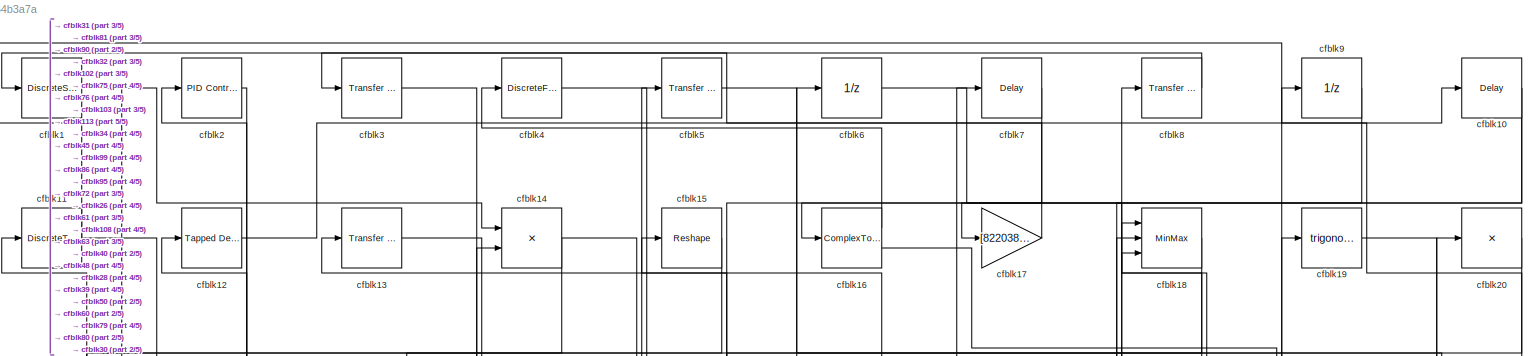
[diagram: root canvas - part 1/5, full width, top band]
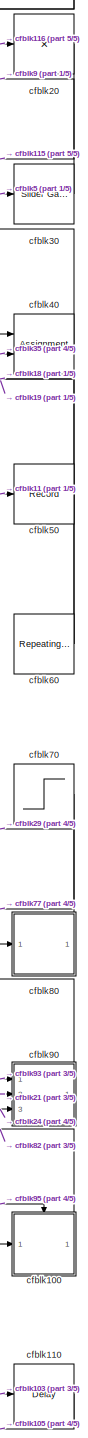
[diagram: root canvas - part 2/5, right side, full height]
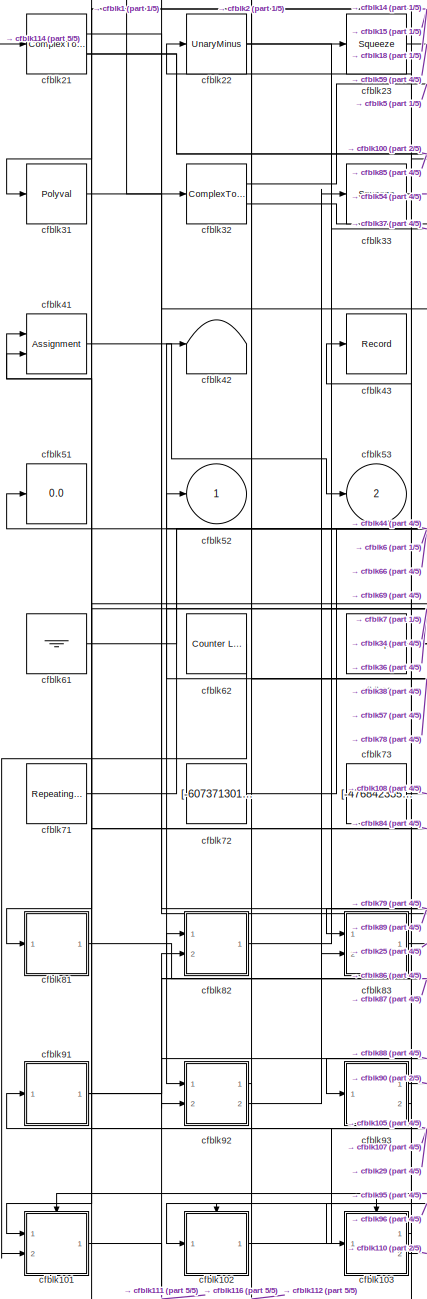
[diagram: root canvas - part 3/5, middle left region]
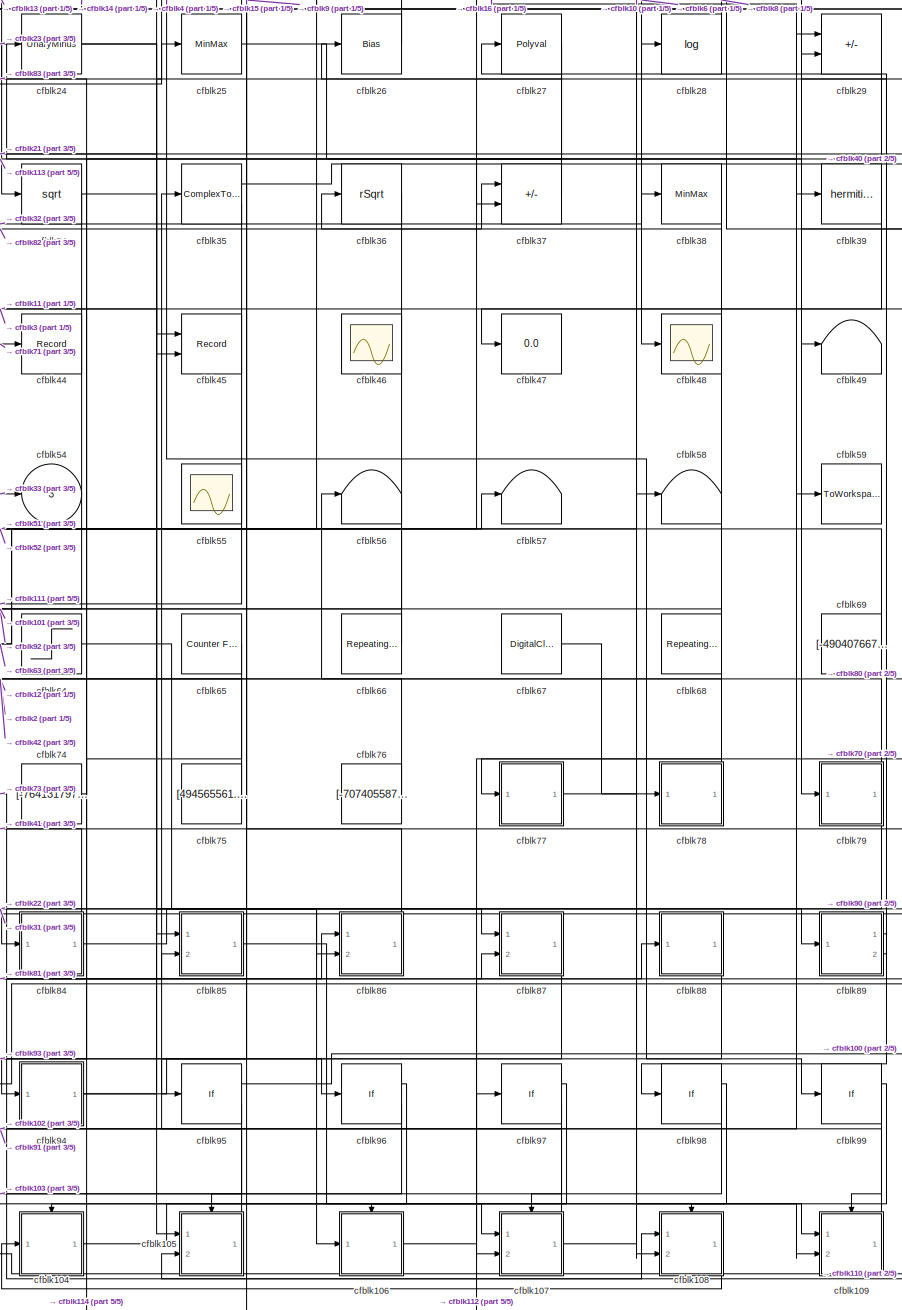
[diagram: root canvas - part 4/5, center side, full height]
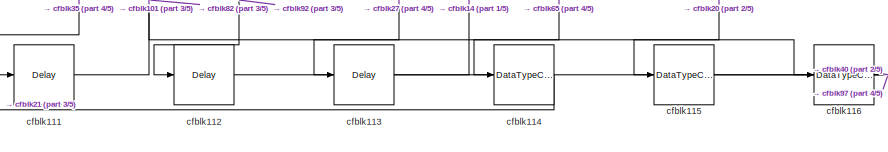
[diagram: root canvas - part 5/5, bottom left region]
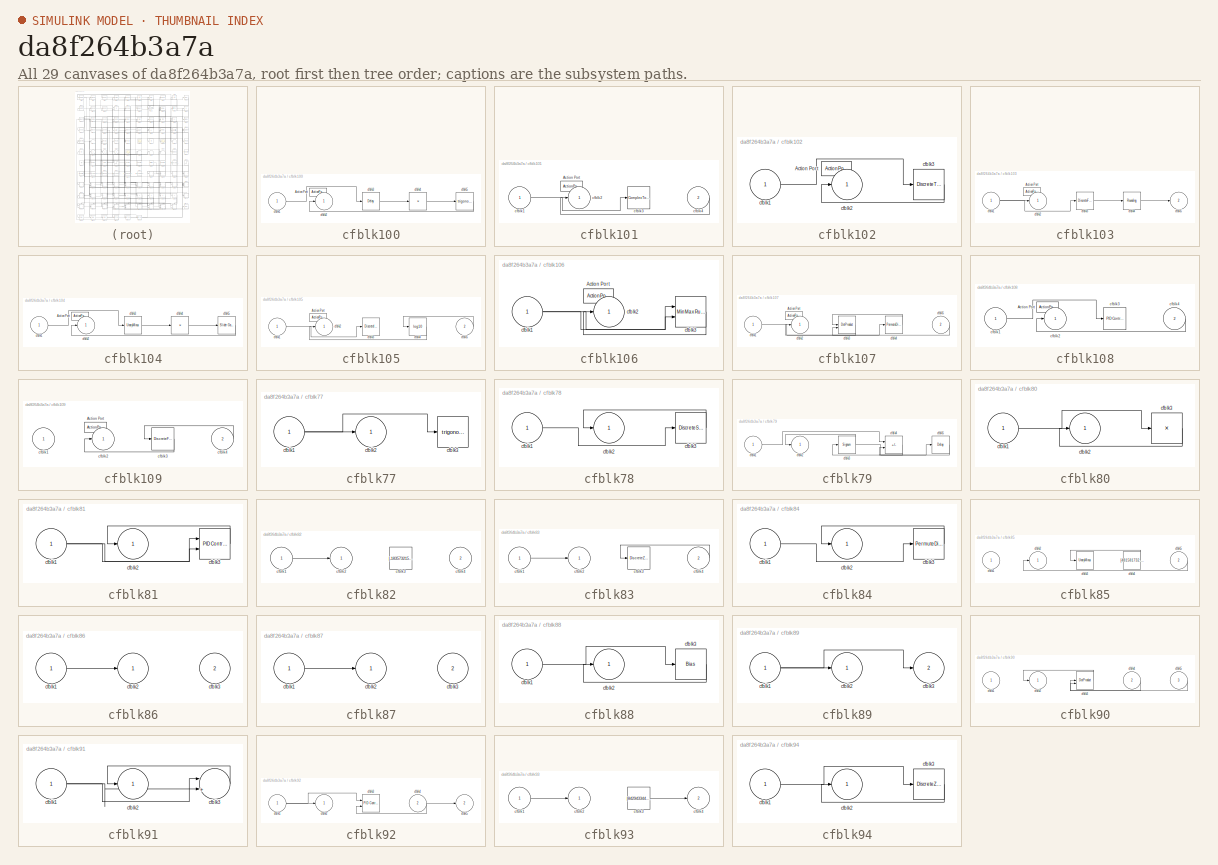
[diagram: thumbnail index - all 29 canvases of the model, root first then tree order]
MODEL slx_da8f264b3a7a
KIND model
CONFIG AbsTol = auto
CONFIG EnableMultiTasking = off
CONFIG FixedStep = auto
CONFIG MaxStep = auto
CONFIG MinStep = auto
CONFIG RelTol = 1e-3
CONFIG SampleTimeConstraint = Unconstrained
CONFIG SolverName = VariableStepAuto
CONFIG StartTime = 0.0
CONFIG StopTime = 10.0
BLOCK [DiscreteStateSpace] cfblk1
BLOCK [Delay] cfblk10
  InputPortMap = u0
  Ports = [1, 1]
  SampleTime = 1
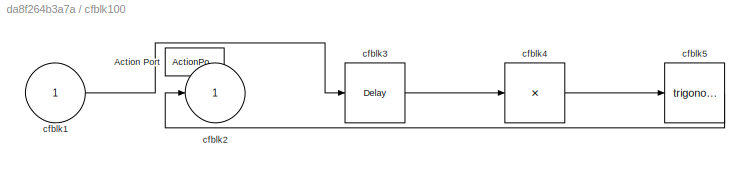
BLOCK [SubSystem] cfblk100
  Ports = [1, 1, 0, 0, 0, 0, 0, 1]
  RequestExecContextInheritance = off
  TreatAsAtomicUnit = on
BLOCK [ActionPort] cfblk100/Action Port
  ActionPortLabel = if(u1 >= 0)
BLOCK [Inport] cfblk100/cfblk1
BLOCK [Outport] cfblk100/cfblk2
BLOCK [Delay] cfblk100/cfblk3
  InputPortMap = u0
  Ports = [1, 1]
BLOCK [Product] cfblk100/cfblk4
  Inputs = *
  Ports = [1, 1]
BLOCK [Trigonometry] cfblk100/cfblk5
  Ports = [1, 1]
BLOCK [SubSystem] cfblk101
  Ports = [2, 1, 0, 0, 0, 0, 0, 1]
  RequestExecContextInheritance = off
  TreatAsAtomicUnit = on
BLOCK [ActionPort] cfblk101/Action Port
  ActionPortLabel = else
BLOCK [Inport] cfblk101/cfblk1
BLOCK [Outport] cfblk101/cfblk2
BLOCK [ComplexToRealImag] cfblk101/cfblk3
  Ports = [1, 2]
BLOCK [Inport] cfblk101/cfblk4
  Port = 2
BLOCK [SubSystem] cfblk102
  Ports = [1, 1, 0, 0, 0, 0, 0, 1]
  RequestExecContextInheritance = off
  TreatAsAtomicUnit = on
BLOCK [ActionPort] cfblk102/Action Port
  ActionPortLabel = if(u1 >= 0)
BLOCK [Inport] cfblk102/cfblk1
BLOCK [Outport] cfblk102/cfblk2
BLOCK [DiscreteTransferFcn] cfblk102/cfblk3
  InputPortMap = u0
  Ports = [1, 1]
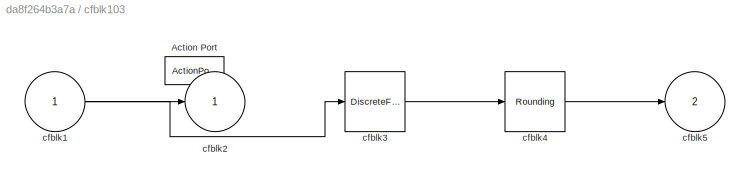
BLOCK [SubSystem] cfblk103
  Ports = [1, 2, 0, 0, 0, 0, 0, 1]
  RequestExecContextInheritance = off
  TreatAsAtomicUnit = on
BLOCK [ActionPort] cfblk103/Action Port
  ActionPortLabel = else
BLOCK [Inport] cfblk103/cfblk1
BLOCK [Outport] cfblk103/cfblk2
BLOCK [DiscreteFilter] cfblk103/cfblk3
  InputPortMap = u0
  Ports = [1, 1]
BLOCK [Rounding] cfblk103/cfblk4
BLOCK [Outport] cfblk103/cfblk5
  Port = 2
BLOCK [SubSystem] cfblk104
  Ports = [1, 1, 0, 0, 0, 0, 0, 1]
  RequestExecContextInheritance = off
  TreatAsAtomicUnit = on
BLOCK [ActionPort] cfblk104/Action Port
  ActionPortLabel = if(u1 >= 0)
BLOCK [Inport] cfblk104/cfblk1
BLOCK [Outport] cfblk104/cfblk2
BLOCK [UnaryMinus] cfblk104/cfblk3
BLOCK [Product] cfblk104/cfblk4
  Inputs = *
  Ports = [1, 1]
BLOCK [Reference] cfblk104/cfblk5  REF=simulink/Math
Operations/Slider
Gain
  Ports = [1, 1]
  SourceBlock = simulink/Math\nOperations/Slider\nGain
  SourceProductBaseCode = SL
  SourceType = Slider Gain
BLOCK [SubSystem] cfblk105
  Ports = [2, 1, 0, 0, 0, 0, 0, 1]
  RequestExecContextInheritance = off
  TreatAsAtomicUnit = on
BLOCK [ActionPort] cfblk105/Action Port
  ActionPortLabel = else
BLOCK [Inport] cfblk105/cfblk1
BLOCK [Outport] cfblk105/cfblk2
BLOCK [DiscreteIntegrator] cfblk105/cfblk3
  ICPrevOutput = DiscIntNeverNeededParam
  ICPrevScaledInput = DiscIntNeverNeededParam
  InitialConditionSetting = Auto
  Ports = [1, 1]
  SampleTime = -1
BLOCK [Math] cfblk105/cfblk4
  Operator = log10
  Ports = [1, 1]
BLOCK [Inport] cfblk105/cfblk5
  Port = 2
BLOCK [SubSystem] cfblk106
  Ports = [1, 1, 0, 0, 0, 0, 0, 1]
  RequestExecContextInheritance = off
  TreatAsAtomicUnit = on
BLOCK [ActionPort] cfblk106/Action Port
  ActionPortLabel = if(u1 >= 0)
BLOCK [Inport] cfblk106/cfblk1
BLOCK [Outport] cfblk106/cfblk2
BLOCK [Reference] cfblk106/cfblk3  REF=simulink/Math
Operations/MinMax
Running
Resettable
  Ports = [2, 1]
  SourceBlock = simulink/Math\nOperations/MinMax\nRunning\nResettable
  SourceProductBaseCode = SL
  SourceType = MinMax Running Resettable
BLOCK [SubSystem] cfblk107
  Ports = [2, 1, 0, 0, 0, 0, 0, 1]
  RequestExecContextInheritance = off
  TreatAsAtomicUnit = on
BLOCK [ActionPort] cfblk107/Action Port
  ActionPortLabel = else
BLOCK [Inport] cfblk107/cfblk1
BLOCK [Outport] cfblk107/cfblk2
BLOCK [DotProduct] cfblk107/cfblk3
  OutDataTypeStr = Inherit: Inherit via internal rule
BLOCK [PermuteDimensions] cfblk107/cfblk4
BLOCK [Inport] cfblk107/cfblk5
  Port = 2
BLOCK [SubSystem] cfblk108
  Ports = [2, 1, 0, 0, 0, 0, 0, 1]
  RequestExecContextInheritance = off
  TreatAsAtomicUnit = on
BLOCK [ActionPort] cfblk108/Action Port
  ActionPortLabel = if(u1 >= 0)
BLOCK [Inport] cfblk108/cfblk1
BLOCK [Outport] cfblk108/cfblk2
BLOCK [Reference] cfblk108/cfblk3  REF=slpidlib/PID Controller
  Ports = [1, 1]
  SourceBlock = slpidlib/PID Controller
  SourceProductBaseCode = SL
  SourceType = PID 1dof
BLOCK [Inport] cfblk108/cfblk4
  Port = 2
BLOCK [SubSystem] cfblk109
  Ports = [2, 1, 0, 0, 0, 0, 0, 1]
  RequestExecContextInheritance = off
  TreatAsAtomicUnit = on
BLOCK [ActionPort] cfblk109/Action Port
  ActionPortLabel = else
BLOCK [Inport] cfblk109/cfblk1
BLOCK [Outport] cfblk109/cfblk2
BLOCK [DiscreteFilter] cfblk109/cfblk3
  InputPortMap = u0
  Ports = [1, 1]
BLOCK [Inport] cfblk109/cfblk4
  Port = 2
BLOCK [DiscreteTransferFcn] cfblk11
  InputPortMap = u0
  Ports = [1, 1]
  SampleTime = 1
BLOCK [Delay] cfblk110
  InputPortMap = u0
  Ports = [1, 1]
  SampleTime = 1
BLOCK [Delay] cfblk111
  InputPortMap = u0
  Ports = [1, 1]
  SampleTime = 1
BLOCK [Delay] cfblk112
  InputPortMap = u0
  Ports = [1, 1]
  SampleTime = 1
BLOCK [Delay] cfblk113
  InputPortMap = u0
  Ports = [1, 1]
  SampleTime = 1
BLOCK [DataTypeConversion] cfblk114
  RndMeth = Floor
  SaturateOnIntegerOverflow = off
BLOCK [DataTypeConversion] cfblk115
  RndMeth = Floor
  SaturateOnIntegerOverflow = off
BLOCK [DataTypeConversion] cfblk116
  RndMeth = Floor
  SaturateOnIntegerOverflow = off
BLOCK [Reference] cfblk12  REF=simulink/Discrete/Tapped Delay
  Ports = [1, 1]
  SourceBlock = simulink/Discrete/Tapped Delay
  SourceProductBaseCode = SL
  SourceType = Tapped Delay Line
BLOCK [Reference] cfblk13  REF=simulink/Discrete/Transfer Fcn
Lead or Lag
  Ports = [1, 1]
  SourceBlock = simulink/Discrete/Transfer Fcn\nLead or Lag
  SourceProductBaseCode = SL
  SourceType = Lead or Lag Compensator
BLOCK [Product] cfblk14
  Ports = [2, 1]
BLOCK [Reshape] cfblk15
  Ports = [1, 1]
BLOCK [ComplexToMagnitudeAngle] cfblk16
  Ports = [1, 2]
BLOCK [Gain] cfblk17
  Gain = [82203851.881258]
BLOCK [MinMax] cfblk18
  Inputs = 3
  Ports = [3, 1]
BLOCK [Trigonometry] cfblk19
  Ports = [1, 1]
BLOCK [Reference] cfblk2  REF=slpidlib/PID Controller
  Ports = [1, 1]
  SourceBlock = slpidlib/PID Controller
  SourceProductBaseCode = SL
  SourceType = PID 1dof
BLOCK [Product] cfblk20
  Inputs = *
  Ports = [1, 1]
BLOCK [ComplexToRealImag] cfblk21
  Ports = [1, 2]
BLOCK [UnaryMinus] cfblk22
BLOCK [Squeeze] cfblk23
BLOCK [UnaryMinus] cfblk24
BLOCK [MinMax] cfblk25
  Function = max
  Ports = [1, 1]
BLOCK [Bias] cfblk26
  Bias = [-425824764.870039]
  SaturateOnIntegerOverflow = off
BLOCK [Polyval] cfblk27
  Coefs = [ +2.081618890e-019, -1.441693666e-014, +4.719686976e-010, -8.536869453e-006, +1.621573104e-001, -8.087801117e+001 ]
BLOCK [Math] cfblk28
  Operator = log
  Ports = [1, 1]
BLOCK [Sum] cfblk29
  IconShape = rectangular
  Inputs = -+
  Ports = [2, 1]
BLOCK [Reference] cfblk3  REF=simulink/Discrete/Transfer Fcn
Lead or Lag
  Ports = [1, 1]
  SourceBlock = simulink/Discrete/Transfer Fcn\nLead or Lag
  SourceProductBaseCode = SL
  SourceType = Lead or Lag Compensator
BLOCK [Reference] cfblk30  REF=simulink/Math
Operations/Slider
Gain
  Ports = [1, 1]
  SourceBlock = simulink/Math\nOperations/Slider\nGain
  SourceProductBaseCode = SL
  SourceType = Slider Gain
BLOCK [Polyval] cfblk31
  Coefs = [ +2.081618890e-019, -1.441693666e-014, +4.719686976e-010, -8.536869453e-006, +1.621573104e-001, -8.087801117e+001 ]
BLOCK [ComplexToRealImag] cfblk32
  Ports = [1, 2]
BLOCK [Squeeze] cfblk33
BLOCK [Sqrt] cfblk34
BLOCK [ComplexToRealImag] cfblk35
  Ports = [1, 2]
BLOCK [Sqrt] cfblk36
  AlgorithmType = Newton-Raphson
  Operator = rSqrt
BLOCK [Sum] cfblk37
  IconShape = rectangular
  Inputs = -+
  Ports = [2, 1]
BLOCK [MinMax] cfblk38
  Function = max
  Ports = [1, 1]
BLOCK [Math] cfblk39
  Operator = hermitian
  Ports = [1, 1]
BLOCK [DiscreteFilter] cfblk4
  InputPortMap = u0
  Ports = [1, 1]
  SampleTime = 1
BLOCK [Assignment] cfblk40
  DiagnosticForDimensions = Warning
  IndexOptions = Index vector (dialog)
  Indices = 1
  OutputSizes = 1
  Ports = [2, 1]
BLOCK [Assignment] cfblk41
  DiagnosticForDimensions = Warning
  IndexOptions = Index vector (dialog)
  Indices = 1
  OutputSizes = 1
  Ports = [2, 1]
BLOCK [Terminator] cfblk42
BLOCK [Record] cfblk43
  FileSettingsInternal = {"entries":[{"content":{"excelSettings":{"content":{},"type":"Streamout.ExcelSettings"}},"type":"Streamout.FileSettingStorage","uuid":"5c4a37b6-0359-467e-84e6-9317a0811d0a"}],"packageUris":["http://schema.mathworks.com/mf0/streamout_blocks/R2020a"],"version":"1.0"}
  Ports = [1]
  SignalsInternal = {"entries":[{"content":{"signals":[{"content":{"blockPath":["sampleModel144/cfblk43"],"channel":[],"dimensions":[1],"domain":"sampleModel144/cfblk43","lineColor":"#d95319","plots":[1],"port":1,"sid":[""],"signalID":5204,"signalName":"cfblk103:1"},"type":"RecordBlkView.Signal","uuid":"9621bb84-a48d-416a-9409-d8cbd1ebf58d"}]},"type":"RecordBlkView.InputSignals","uuid":"23b9c5c9-19cf-4bac-a036-d5d4f1...<+100ch>
  VisualizationBindings = {"sparklinesplugin":{"info":[{"bindingParametersList":[],"subplotID":1}]}}
BLOCK [Record] cfblk44
  FileSettingsInternal = {"entries":[{"content":{"excelSettings":{"content":{},"type":"Streamout.ExcelSettings"}},"type":"Streamout.FileSettingStorage","uuid":"03f92004-a9d3-4a0e-b80c-98bf6b8b5017"}],"packageUris":["http://schema.mathworks.com/mf0/streamout_blocks/R2020a"],"version":"1.0"}
  Ports = [1]
  SignalsInternal = {"entries":[{"content":{"signals":[{"content":{"blockPath":["sampleModel144/cfblk44"],"channel":[],"dimensions":[1],"domain":"sampleModel144/cfblk44","lineColor":"#4dbeee","plots":[1],"port":1,"sid":[""],"signalID":5220,"signalName":"cfblk71"},"type":"RecordBlkView.Signal","uuid":"c2fc6b42-ec73-41e0-9d10-4ee77b5be672"}]},"type":"RecordBlkView.InputSignals","uuid":"632f383e-e8e8-4e3e-9502-4cccf17ac...<+97ch>
  VisualizationBindings = {"sparklinesplugin":{"info":[{"bindingParametersList":[],"subplotID":1}]}}
BLOCK [Record] cfblk45
  CompatibilityTag = XY
  FileSettingsInternal = {"entries":[{"content":{"excelSettings":{"content":{},"type":"Streamout.ExcelSettings"}},"type":"Streamout.FileSettingStorage","uuid":"04b73ee6-1f3f-4c79-aaae-0e4c130555b6"}],"packageUris":["http://schema.mathworks.com/mf0/streamout_blocks/R2020a"],"version":"1.0"}
  Layout = [1 1]
  Ports = [2]
  SignalsInternal = {"entries":[{"content":{"signals":[{"content":{"blockPath":["sampleModel144/cfblk45"],"channel":[],"dimensions":[1],"domain":"sampleModel144/cfblk45","lineColor":"#a2142f","plots":[1],"port":1,"sid":[""],"signalID":5208,"signalName":"cfblk14"},"type":"RecordBlkView.Signal","uuid":"97cb9547-06cd-434e-bd16-bfd4ee99d097"},{"content":{"blockPath":["sampleModel144/cfblk45"],"channel":[],"dimensions":[1...<+382ch>
  VisualizationBindings = {"xyplotplugin":{"info":[{"series":[{"bindingParametersList":[{"parameter":"X-Axis","signalID":5208,"signalName":"cfblk14"},{"parameter":"Y-Axis","signalID":5212,"signalName":"cfblk3"}],"seriesID":37859}],"subplotID":1}]}}
BLOCK [Scope] cfblk46
  Floating = on
  NumInputPorts = 1
  Ports = []
BLOCK [Display] cfblk47
  Decimation = 1
  Ports = [1]
BLOCK [Scope] cfblk48
  Floating = off
  NumInputPorts = 1
  Ports = [1]
BLOCK [Terminator] cfblk49
BLOCK [Reference] cfblk5  REF=simulink/Discrete/Transfer Fcn
Lead or Lag
  Ports = [1, 1]
  SourceBlock = simulink/Discrete/Transfer Fcn\nLead or Lag
  SourceProductBaseCode = SL
  SourceType = Lead or Lag Compensator
BLOCK [Record] cfblk50
  FileSettingsInternal = {"entries":[{"content":{"excelSettings":{"content":{},"type":"Streamout.ExcelSettings"}},"type":"Streamout.FileSettingStorage","uuid":"9c2b4a6c-49af-440e-8358-9805173d7e4c"}],"packageUris":["http://schema.mathworks.com/mf0/streamout_blocks/R2020a"],"version":"1.0"}
  Ports = [1]
  SignalsInternal = {"entries":[{"content":{"signals":[{"content":{"blockPath":["sampleModel144/cfblk50"],"channel":[],"dimensions":[1],"domain":"sampleModel144/cfblk50","lineColor":"#77ac30","plots":[1],"port":1,"sid":[""],"signalID":5216,"signalName":"cfblk11"},"type":"RecordBlkView.Signal","uuid":"50ec43a9-0023-4b49-9f3d-5174647fc26d"}]},"type":"RecordBlkView.InputSignals","uuid":"1b3cebce-2def-4e8e-90ba-a55665d60...<+97ch>
  VisualizationBindings = {"sparklinesplugin":{"info":[{"bindingParametersList":[],"subplotID":1}]}}
BLOCK [Display] cfblk51
  Decimation = 1
  Ports = [1]
BLOCK [Outport] cfblk52
BLOCK [Outport] cfblk53
  Port = 2
BLOCK [Outport] cfblk54
  Port = 3
BLOCK [Scope] cfblk55
  Floating = on
  NumInputPorts = 1
  Ports = []
BLOCK [Terminator] cfblk56
BLOCK [Terminator] cfblk57
BLOCK [Terminator] cfblk58
BLOCK [ToWorkspace] cfblk59
  FixptAsFi = on
  MaxDataPoints = inf
  Ports = [1]
  SampleTime = -1
  SaveFormat = Timeseries
  VariableName = dmtygra
BLOCK [UnitDelay] cfblk6
  HasFrameUpgradeWarning = on
BLOCK [Reference] cfblk60  REF=simulink/Sources/Repeating
Sequence
Stair
  Ports = [0, 1]
  SourceBlock = simulink/Sources/Repeating\nSequence\nStair
  SourceProductBaseCode = SL
  SourceType = Repeating Sequence Stair
BLOCK [Ground] cfblk61
BLOCK [Reference] cfblk62  REF=simulink/Sources/Counter
Limited
  Ports = [0, 1]
  SourceBlock = simulink/Sources/Counter\nLimited
  SourceProductBaseCode = SL
  SourceType = Counter Limited
BLOCK [Reference] cfblk63  REF=simulink/Sources/Ramp
  Ports = [0, 1]
  SourceBlock = simulink/Sources/Ramp
  SourceProductBaseCode = SL
  SourceType = Ramp
BLOCK [Step] cfblk64
  After = [-26613857.033650]
  Before = [375351102.117326]
  SampleTime = 0
  Time = [34.000000]
BLOCK [Reference] cfblk65  REF=simulink/Sources/Counter
Free-Running
  Ports = [0, 1]
  SourceBlock = simulink/Sources/Counter\nFree-Running
  SourceProductBaseCode = SL
  SourceType = Counter Free-Running
BLOCK [Reference] cfblk66  REF=simulink/Sources/Repeating
Sequence
Interpolated
  Ports = [0, 1]
  SourceBlock = simulink/Sources/Repeating\nSequence\nInterpolated
  SourceProductBaseCode = SL
  SourceType = Repeating Sequence Interpolated
BLOCK [DigitalClock] cfblk67
BLOCK [Reference] cfblk68  REF=simulink/Sources/Repeating
Sequence
Interpolated
  Ports = [0, 1]
  SourceBlock = simulink/Sources/Repeating\nSequence\nInterpolated
  SourceProductBaseCode = SL
  SourceType = Repeating Sequence Interpolated
BLOCK [Constant] cfblk69
  SampleTime = 1
  Value = [-490407667.791831]
BLOCK [Delay] cfblk7
  InputPortMap = u0
  Ports = [1, 1]
  SampleTime = 1
BLOCK [Step] cfblk70
  After = [-181712344.934336]
  Before = [-461429568.151026]
  SampleTime = 0
  Time = [49.000000]
BLOCK [Reference] cfblk71  REF=simulink/Sources/Repeating
Sequence
Interpolated
  Ports = [0, 1]
  SourceBlock = simulink/Sources/Repeating\nSequence\nInterpolated
  SourceProductBaseCode = SL
  SourceType = Repeating Sequence Interpolated
BLOCK [Constant] cfblk72
  SampleTime = 1
  Value = [-607371301.260492]
BLOCK [Constant] cfblk73
  SampleTime = 1
  Value = [-476842335.717172]
BLOCK [Constant] cfblk74
  SampleTime = 1
  Value = [-764131797.286092]
BLOCK [Constant] cfblk75
  SampleTime = 1
  Value = [494565561.196399]
BLOCK [Constant] cfblk76
  SampleTime = 1
  Value = [-707405587.799836]
BLOCK [SubSystem] cfblk77
  Ports = [1, 1]
  RequestExecContextInheritance = off
BLOCK [Inport] cfblk77/cfblk1
BLOCK [Outport] cfblk77/cfblk2
BLOCK [Trigonometry] cfblk77/cfblk3
  Ports = [1, 1]
BLOCK [SubSystem] cfblk78
  Ports = [1, 1]
  RequestExecContextInheritance = off
BLOCK [Inport] cfblk78/cfblk1
BLOCK [Outport] cfblk78/cfblk2
BLOCK [DiscreteStateSpace] cfblk78/cfblk3
BLOCK [SubSystem] cfblk79
  Ports = [1, 1]
  RequestExecContextInheritance = off
BLOCK [Inport] cfblk79/cfblk1
BLOCK [Outport] cfblk79/cfblk2
BLOCK [Signum] cfblk79/cfblk3
BLOCK [Sum] cfblk79/cfblk4
  IconShape = rectangular
  Inputs = --
  Ports = [2, 1]
BLOCK [Delay] cfblk79/cfblk5
  InputPortMap = u0
  Ports = [1, 1]
  SampleTime = 1
BLOCK [Reference] cfblk8  REF=simulink/Discrete/Transfer Fcn
Lead or Lag
  Ports = [1, 1]
  SourceBlock = simulink/Discrete/Transfer Fcn\nLead or Lag
  SourceProductBaseCode = SL
  SourceType = Lead or Lag Compensator
BLOCK [SubSystem] cfblk80
  Ports = [1, 1]
  RequestExecContextInheritance = off
BLOCK [Inport] cfblk80/cfblk1
BLOCK [Outport] cfblk80/cfblk2
BLOCK [Product] cfblk80/cfblk3
  Inputs = *
  Ports = [1, 1]
BLOCK [SubSystem] cfblk81
  Ports = [1, 1]
  RequestExecContextInheritance = off
BLOCK [Inport] cfblk81/cfblk1
BLOCK [Outport] cfblk81/cfblk2
BLOCK [Reference] cfblk81/cfblk3  REF=slpidlib/PID Controller (2DOF)
  Ports = [2, 1]
  SourceBlock = slpidlib/PID Controller (2DOF)
  SourceProductBaseCode = SL
  SourceType = PID 2dof
BLOCK [SubSystem] cfblk82
  Ports = [2, 1]
  RequestExecContextInheritance = off
BLOCK [Inport] cfblk82/cfblk1
BLOCK [Outport] cfblk82/cfblk2
BLOCK [Constant] cfblk82/cfblk3
  SampleTime = 1
  Value = [-183573215.800943]
BLOCK [Inport] cfblk82/cfblk4
  Port = 2
BLOCK [SubSystem] cfblk83
  Ports = [2, 1]
  RequestExecContextInheritance = off
BLOCK [Inport] cfblk83/cfblk1
BLOCK [Outport] cfblk83/cfblk2
BLOCK [DiscreteZeroPole] cfblk83/cfblk3
  Gain = 1
  Poles = [0 0.5]
BLOCK [Inport] cfblk83/cfblk4
  Port = 2
BLOCK [SubSystem] cfblk84
  Ports = [1, 1]
  RequestExecContextInheritance = off
BLOCK [Inport] cfblk84/cfblk1
BLOCK [Outport] cfblk84/cfblk2
BLOCK [PermuteDimensions] cfblk84/cfblk3
BLOCK [SubSystem] cfblk85
  Ports = [2, 1]
  RequestExecContextInheritance = off
BLOCK [Inport] cfblk85/cfblk1
BLOCK [Outport] cfblk85/cfblk2
BLOCK [UnaryMinus] cfblk85/cfblk3
BLOCK [Constant] cfblk85/cfblk4
  SampleTime = 1
  Value = [481581732.776417]
BLOCK [Inport] cfblk85/cfblk5
  Port = 2
BLOCK [SubSystem] cfblk86
  Ports = [2, 1]
  RequestExecContextInheritance = off
BLOCK [Inport] cfblk86/cfblk1
BLOCK [Outport] cfblk86/cfblk2
BLOCK [Inport] cfblk86/cfblk3
  Port = 2
BLOCK [SubSystem] cfblk87
  Ports = [2, 1]
  RequestExecContextInheritance = off
BLOCK [Inport] cfblk87/cfblk1
BLOCK [Outport] cfblk87/cfblk2
BLOCK [Inport] cfblk87/cfblk3
  Port = 2
BLOCK [SubSystem] cfblk88
  Ports = [1, 1]
  RequestExecContextInheritance = off
BLOCK [Inport] cfblk88/cfblk1
BLOCK [Outport] cfblk88/cfblk2
BLOCK [Bias] cfblk88/cfblk3
  Bias = [-916073872.083986]
  SaturateOnIntegerOverflow = off
BLOCK [SubSystem] cfblk89
  Ports = [1, 2]
  RequestExecContextInheritance = off
BLOCK [Inport] cfblk89/cfblk1
BLOCK [Outport] cfblk89/cfblk2
BLOCK [Outport] cfblk89/cfblk3
  Port = 2
BLOCK [UnitDelay] cfblk9
  HasFrameUpgradeWarning = on
BLOCK [SubSystem] cfblk90
  Ports = [3, 1]
  RequestExecContextInheritance = off
BLOCK [Inport] cfblk90/cfblk1
BLOCK [Outport] cfblk90/cfblk2
BLOCK [DotProduct] cfblk90/cfblk3
  OutDataTypeStr = Inherit: Inherit via internal rule
BLOCK [Inport] cfblk90/cfblk4
  Port = 2
BLOCK [Inport] cfblk90/cfblk5
  Port = 3
BLOCK [SubSystem] cfblk91
  Ports = [1, 1]
  RequestExecContextInheritance = off
BLOCK [Inport] cfblk91/cfblk1
BLOCK [Outport] cfblk91/cfblk2
BLOCK [Sum] cfblk91/cfblk3
  Inputs = |++
  Ports = [2, 1]
BLOCK [SubSystem] cfblk92
  Ports = [2, 2]
  RequestExecContextInheritance = off
BLOCK [Inport] cfblk92/cfblk1
BLOCK [Outport] cfblk92/cfblk2
BLOCK [Reference] cfblk92/cfblk3  REF=slpidlib/PID Controller (2DOF)
  Ports = [2, 1]
  SourceBlock = slpidlib/PID Controller (2DOF)
  SourceProductBaseCode = SL
  SourceType = PID 2dof
BLOCK [Inport] cfblk92/cfblk4
  Port = 2
BLOCK [Outport] cfblk92/cfblk5
  Port = 2
BLOCK [SubSystem] cfblk93
  Ports = [1, 2]
  RequestExecContextInheritance = off
BLOCK [Inport] cfblk93/cfblk1
BLOCK [Outport] cfblk93/cfblk2
BLOCK [Constant] cfblk93/cfblk3
  SampleTime = 1
  Value = [842943344.214737]
BLOCK [Outport] cfblk93/cfblk4
  Port = 2
BLOCK [SubSystem] cfblk94
  Ports = [1, 1]
  RequestExecContextInheritance = off
BLOCK [Inport] cfblk94/cfblk1
BLOCK [Outport] cfblk94/cfblk2
BLOCK [DiscreteZeroPole] cfblk94/cfblk3
  Gain = 1
  Poles = [0 0.5]
BLOCK [If] cfblk95
  IfExpression = u1 >= 0
  Ports = [1, 2]
  SampleTime = 1
BLOCK [If] cfblk96
  IfExpression = u1 >= 0
  Ports = [1, 2]
  SampleTime = 1
BLOCK [If] cfblk97
  IfExpression = u1 >= 0
  Ports = [1, 2]
  SampleTime = 1
BLOCK [If] cfblk98
  IfExpression = u1 >= 0
  Ports = [1, 2]
  SampleTime = 1
BLOCK [If] cfblk99
  IfExpression = u1 >= 0
  Ports = [1, 2]
  SampleTime = 1
LINE cfblk100/cfblk1:1 -> cfblk100/cfblk3:1
LINE cfblk100/cfblk3:1 -> cfblk100/cfblk4:1
LINE cfblk100/cfblk4:1 -> cfblk100/cfblk5:1
LINE cfblk100/cfblk5:1 -> cfblk100/cfblk2:1
LINE cfblk100:1 -> cfblk82:1
LINE cfblk101/cfblk1:1 -> cfblk101/cfblk3:1
LINE cfblk101/cfblk4:1 -> cfblk101/cfblk2:1
LINE cfblk101:1 -> cfblk116:1
LINE cfblk102/cfblk1:1 -> cfblk102/cfblk3:1
LINE cfblk102/cfblk3:1 -> cfblk102/cfblk2:1
LINE cfblk102:1 -> cfblk29:1
NET cfblk103/cfblk1:1 -> cfblk103/cfblk2:1, cfblk103/cfblk3:1
LINE cfblk103/cfblk3:1 -> cfblk103/cfblk4:1
LINE cfblk103/cfblk4:1 -> cfblk103/cfblk5:1
LINE cfblk103:1 -> cfblk43:1
LINE cfblk103:2 -> cfblk110:1
LINE cfblk104/cfblk1:1 -> cfblk104/cfblk3:1
LINE cfblk104/cfblk3:1 -> cfblk104/cfblk4:1
LINE cfblk104/cfblk4:1 -> cfblk104/cfblk5:1
LINE cfblk104/cfblk5:1 -> cfblk104/cfblk2:1
LINE cfblk104:1 -> cfblk109:1
LINE cfblk105/cfblk1:1 -> cfblk105/cfblk3:1
LINE cfblk105/cfblk4:1 -> cfblk105/cfblk2:1
LINE cfblk105/cfblk5:1 -> cfblk105/cfblk4:1
LINE cfblk105:1 -> cfblk91:1
NET cfblk106/cfblk1:1 -> cfblk106/cfblk3:1, cfblk106/cfblk3:2
LINE cfblk106/cfblk3:1 -> cfblk106/cfblk2:1
LINE cfblk106:1 -> cfblk88:1
LINE cfblk107/cfblk1:1 -> cfblk107/cfblk4:1
LINE cfblk107/cfblk3:1 -> cfblk107/cfblk2:1
LINE cfblk107/cfblk4:1 -> cfblk107/cfblk3:1
LINE cfblk107/cfblk5:1 -> cfblk107/cfblk3:2
NET cfblk107:1 -> cfblk41:2, cfblk58:1
LINE cfblk108/cfblk1:1 -> cfblk108/cfblk3:1
LINE cfblk108/cfblk4:1 -> cfblk108/cfblk2:1
LINE cfblk108:1 -> cfblk104:1
LINE cfblk109/cfblk3:1 -> cfblk109/cfblk2:1
LINE cfblk109/cfblk4:1 -> cfblk109/cfblk3:1
LINE cfblk109:1 -> cfblk35:1
NET cfblk10:1 -> cfblk108:2, cfblk16:1
LINE cfblk110:1 -> cfblk105:2
LINE cfblk111:1 -> cfblk82:2
LINE cfblk112:1 -> cfblk97:1
LINE cfblk113:1 -> cfblk14:2
LINE cfblk114:1 -> cfblk21:1
LINE cfblk115:1 -> cfblk40:1
LINE cfblk116:1 -> cfblk20:1
NET cfblk11:1 -> cfblk50:1, cfblk79:1
LINE cfblk12:1 -> cfblk10:1
LINE cfblk13:1 -> cfblk34:1
NET cfblk14:1 -> cfblk31:1, cfblk45:1
LINE cfblk15:1 -> cfblk81:1
LINE cfblk16:1 -> cfblk4:1
LINE cfblk16:2 -> cfblk39:1
LINE cfblk17:1 -> cfblk1:1
LINE cfblk18:1 -> cfblk103:1
LINE cfblk19:1 -> cfblk80:1
NET cfblk1:1 -> cfblk14:1, cfblk32:1
LINE cfblk20:1 -> cfblk115:1
LINE cfblk21:1 -> cfblk90:2
NET cfblk21:2 -> cfblk100:1, cfblk85:1
NET cfblk22:1 -> cfblk23:1, cfblk84:1
LINE cfblk23:1 -> cfblk59:1
NET cfblk24:1 -> cfblk86:2, cfblk90:3
LINE cfblk25:1 -> cfblk49:1
LINE cfblk26:1 -> cfblk13:1
NET cfblk27:1 -> cfblk113:1, cfblk94:1
LINE cfblk28:1 -> cfblk8:1
LINE cfblk29:1 -> cfblk37:2
LINE cfblk2:1 -> cfblk102:1
LINE cfblk30:1 -> cfblk9:1
LINE cfblk31:1 -> cfblk89:1
LINE cfblk32:1 -> cfblk5:1
LINE cfblk32:2 -> cfblk38:1
LINE cfblk33:1 -> cfblk54:1
NET cfblk34:1 -> cfblk105:1, cfblk83:2
LINE cfblk35:1 -> cfblk40:2
LINE cfblk35:2 -> cfblk111:1
LINE cfblk36:1 -> cfblk92:1
LINE cfblk37:1 -> cfblk26:1
LINE cfblk38:1 -> cfblk101:1
LINE cfblk39:1 -> cfblk47:1
LINE cfblk3:1 -> cfblk45:2
LINE cfblk40:1 -> cfblk18:1
LINE cfblk41:1 -> cfblk53:1
LINE cfblk4:1 -> cfblk99:1
LINE cfblk5:1 -> cfblk30:1
NET cfblk60:1 -> cfblk18:3, cfblk19:1
LINE cfblk61:1 -> cfblk7:1
LINE cfblk62:1 -> cfblk101:2
NET cfblk63:1 -> cfblk18:2, cfblk57:1
LINE cfblk64:1 -> cfblk106:1
LINE cfblk65:1 -> cfblk114:1
LINE cfblk66:1 -> cfblk51:1
LINE cfblk67:1 -> cfblk78:1
NET cfblk68:1 -> cfblk107:2, cfblk36:1
LINE cfblk69:1 -> cfblk52:1
LINE cfblk6:1 -> cfblk48:1
LINE cfblk70:1 -> cfblk77:1
LINE cfblk71:1 -> cfblk44:1
LINE cfblk72:1 -> cfblk6:1
LINE cfblk73:1 -> cfblk108:1
LINE cfblk74:1 -> cfblk24:1
LINE cfblk75:1 -> cfblk12:1
LINE cfblk76:1 -> cfblk2:1
NET cfblk77/cfblk1:1 -> cfblk77/cfblk2:1, cfblk77/cfblk3:1
LINE cfblk77:1 -> cfblk109:2
LINE cfblk78/cfblk1:1 -> cfblk78/cfblk3:1
LINE cfblk78/cfblk3:1 -> cfblk78/cfblk2:1
LINE cfblk78:1 -> cfblk42:1
LINE cfblk79/cfblk1:1 -> cfblk79/cfblk4:1
NET cfblk79/cfblk3:1 -> cfblk79/cfblk2:1, cfblk79/cfblk5:1
LINE cfblk79/cfblk4:1 -> cfblk79/cfblk3:1
LINE cfblk79/cfblk5:1 -> cfblk79/cfblk4:2
NET cfblk79:1 -> cfblk56:1, cfblk83:1
LINE cfblk7:1 -> cfblk17:1
LINE cfblk80/cfblk1:1 -> cfblk80/cfblk3:1
LINE cfblk80/cfblk3:1 -> cfblk80/cfblk2:1
LINE cfblk80:1 -> cfblk29:2
NET cfblk81/cfblk1:1 -> cfblk81/cfblk3:1, cfblk81/cfblk3:2
LINE cfblk81/cfblk3:1 -> cfblk81/cfblk2:1
LINE cfblk81:1 -> cfblk87:2
LINE cfblk82/cfblk1:1 -> cfblk82/cfblk2:1
LINE cfblk82:1 -> cfblk37:1
LINE cfblk83/cfblk1:1 -> cfblk83/cfblk2:1
LINE cfblk83/cfblk4:1 -> cfblk83/cfblk3:1
LINE cfblk83:1 -> cfblk25:1
LINE cfblk84/cfblk1:1 -> cfblk84/cfblk3:1
LINE cfblk84/cfblk3:1 -> cfblk84/cfblk2:1
NET cfblk84:1 -> cfblk41:1, cfblk87:1
LINE cfblk85/cfblk4:1 -> cfblk85/cfblk3:1
LINE cfblk85/cfblk5:1 -> cfblk85/cfblk2:1
LINE cfblk85:1 -> cfblk107:1
LINE cfblk86/cfblk1:1 -> cfblk86/cfblk2:1
LINE cfblk86:1 -> cfblk15:1
LINE cfblk87/cfblk1:1 -> cfblk87/cfblk2:1
LINE cfblk87:1 -> cfblk92:2
LINE cfblk88/cfblk1:1 -> cfblk88/cfblk3:1
LINE cfblk88/cfblk3:1 -> cfblk88/cfblk2:1
LINE cfblk88:1 -> cfblk93:1
NET cfblk89/cfblk1:1 -> cfblk89/cfblk2:1, cfblk89/cfblk3:1
LINE cfblk89:1 -> cfblk98:1
LINE cfblk89:2 -> cfblk27:1
LINE cfblk8:1 -> cfblk3:1
LINE cfblk90/cfblk3:1 -> cfblk90/cfblk2:1
LINE cfblk90/cfblk4:1 -> cfblk90/cfblk3:1
LINE cfblk90/cfblk5:1 -> cfblk90/cfblk3:2
LINE cfblk90:1 -> cfblk11:1
NET cfblk91/cfblk1:1 -> cfblk91/cfblk3:1, cfblk91/cfblk3:2
LINE cfblk91/cfblk3:1 -> cfblk91/cfblk2:1
NET cfblk91:1 -> cfblk85:2, cfblk86:1
NET cfblk92/cfblk1:1 -> cfblk92/cfblk2:1, cfblk92/cfblk3:1
NET cfblk92/cfblk4:1 -> cfblk92/cfblk3:2, cfblk92/cfblk5:1
LINE cfblk92:1 -> cfblk112:1
LINE cfblk92:2 -> cfblk33:1
LINE cfblk93/cfblk1:1 -> cfblk93/cfblk2:1
LINE cfblk93/cfblk3:1 -> cfblk93/cfblk4:1
LINE cfblk93:1 -> cfblk90:1
LINE cfblk93:2 -> cfblk22:1
LINE cfblk94/cfblk1:1 -> cfblk94/cfblk3:1
LINE cfblk94/cfblk3:1 -> cfblk94/cfblk2:1
NET cfblk94:1 -> cfblk28:1, cfblk96:1
LINE cfblk95:1 -> cfblk100:ifaction
LINE cfblk95:2 -> cfblk101:ifaction
LINE cfblk96:1 -> cfblk102:ifaction
LINE cfblk96:2 -> cfblk103:ifaction
LINE cfblk97:1 -> cfblk104:ifaction
LINE cfblk97:2 -> cfblk105:ifaction
LINE cfblk98:1 -> cfblk106:ifaction
LINE cfblk98:2 -> cfblk107:ifaction
LINE cfblk99:1 -> cfblk108:ifaction
LINE cfblk99:2 -> cfblk109:ifaction
LINE cfblk9:1 -> cfblk95:1
note: NET lines group one-source signal fan-out (src -> all destinations, sorted); 1:1 wires keep LINE
